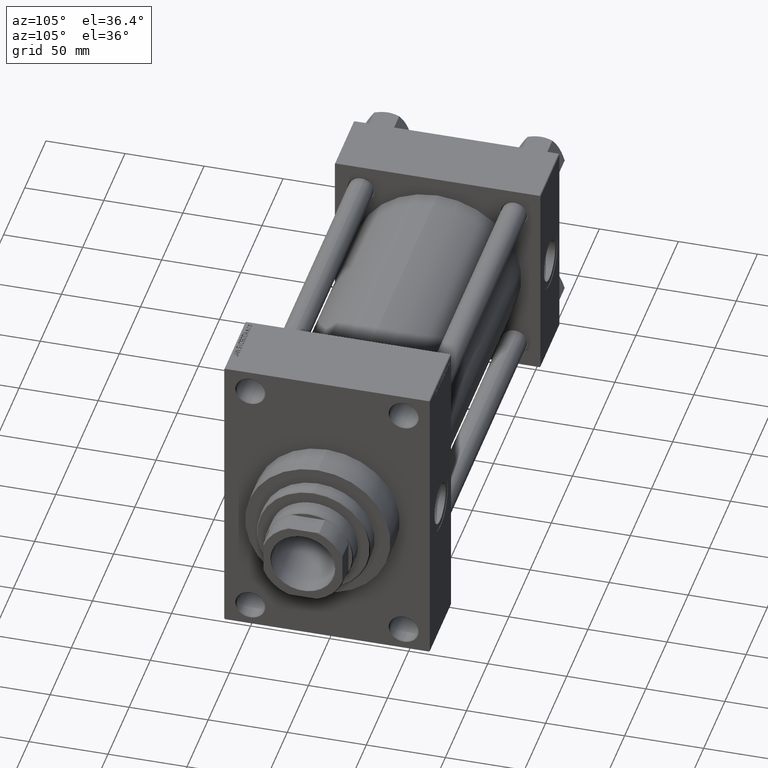
[diagram: clean part render]
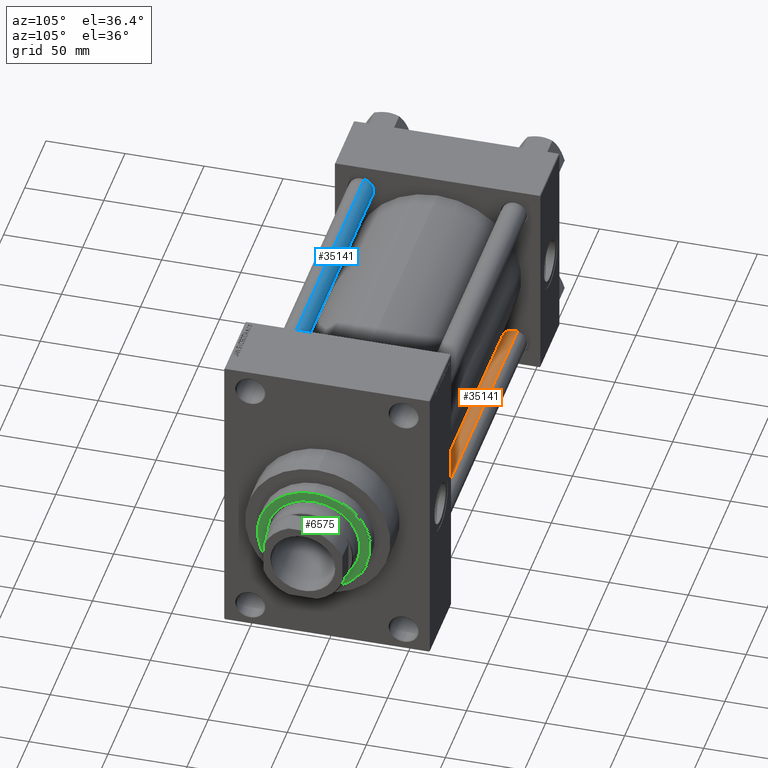
[diagram: same view with three faces highlighted in distinct colors, each labeled with its STEP entity id]
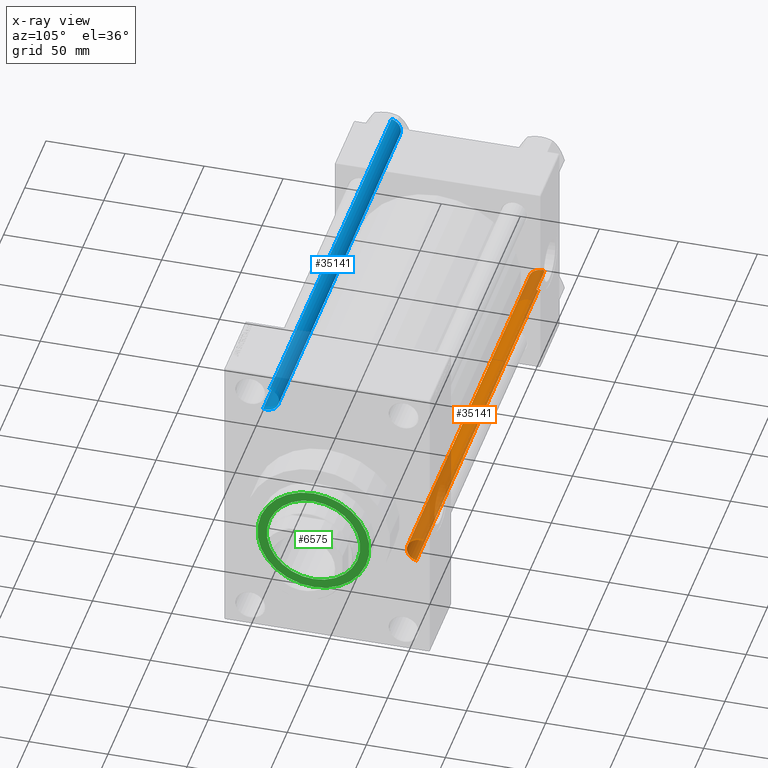
[diagram: x-ray of the same camera — body ghosted, the three highlighted faces saturated]
A machine part, auxiliary view with three faces highlighted in distinct colors.
The next image is the same camera in x-ray (body ghosted, the three faces saturated) — at least one of them is partly hidden behind the body in this view.
Their STEP definitions:

[orange] entity #35141 — the highlighted cylindrical surface (edge-blend (fillet) strip) has radius 8 mm, axis along (1, -0, 0).
#2326 = CARTESIAN_POINT ( 'NONE',  ( -8.000000000000000000, 0.000000000000000000, 289.0000000000000000 ) ) ;
#5060 = FACE_OUTER_BOUND ( 'NONE', #15351, .T. ) ;
#5304 = CYLINDRICAL_SURFACE ( 'NONE', #41360, 8.000000000000000000 ) ;
#8291 = VERTEX_POINT ( 'NONE', #25062 ) ;
#10431 = VERTEX_POINT ( 'NONE', #44399 ) ;
#15351 = EDGE_LOOP ( 'NONE', ( #21413, #37811, #22789, #37921 ) ) ;
#15922 = CIRCLE ( 'NONE', #34844, 8.000000000000000000 ) ;
#16666 = CARTESIAN_POINT ( 'NONE',  ( 0.000000000000000000, 0.000000000000000000, 289.0000000000000000 ) ) ;
#18906 = CIRCLE ( 'NONE', #25210, 8.000000000000000000 ) ;
#19583 = DIRECTION ( 'NONE',  ( -0.000000000000000000, -0.000000000000000000, -1.000000000000000000 ) ) ;
#19764 = EDGE_CURVE ( 'NONE', #37054, #36931, #18906, .T. ) ;
#20620 = DIRECTION ( 'NONE',  ( -1.000000000000000000, 0.000000000000000000, 0.000000000000000000 ) ) ;
#21413 = ORIENTED_EDGE ( 'NONE', *, *, #38571, .F. ) ;
#22051 = DIRECTION ( 'NONE',  ( -0.000000000000000000, -0.000000000000000000, -1.000000000000000000 ) ) ;
#22789 = ORIENTED_EDGE ( 'NONE', *, *, #24087, .T. ) ;
#24087 = EDGE_CURVE ( 'NONE', #10431, #37054, #39356, .T. ) ;
#25062 = CARTESIAN_POINT ( 'NONE',  ( 8.000000000000000000, 9.797174393178825657E-16, 288.5000000000000000 ) ) ;
#25210 = AXIS2_PLACEMENT_3D ( 'NONE', #35711, #46298, #42607 ) ;
#26658 = DIRECTION ( 'NONE',  ( 0.000000000000000000, 0.000000000000000000, -1.000000000000000000 ) ) ;
#27221 = CARTESIAN_POINT ( 'NONE',  ( 8.000000000000000000, 9.797174393178825657E-16, 289.0000000000000000 ) ) ;
#27388 = CARTESIAN_POINT ( 'NONE',  ( 0.000000000000000000, 0.000000000000000000, 288.5000000000000000 ) ) ;
#27993 = EDGE_CURVE ( 'NONE', #8291, #10431, #15922, .T. ) ;
#30081 = VECTOR ( 'NONE', #22051, 1000.000000000000000 ) ;
#32598 = LINE ( 'NONE', #27221, #41355 ) ;
#32886 = CARTESIAN_POINT ( 'NONE',  ( -8.000000000000000000, 0.000000000000000000, 0.5000000000000004441 ) ) ;
#34844 = AXIS2_PLACEMENT_3D ( 'NONE', #27388, #26658, #42439 ) ;
#35141 = ADVANCED_FACE ( 'NONE', ( #5060 ), #5304, .T. ) ;
#35711 = CARTESIAN_POINT ( 'NONE',  ( 0.000000000000000000, 0.000000000000000000, 0.5000000000000004441 ) ) ;
#36931 = VERTEX_POINT ( 'NONE', #41810 ) ;
#37054 = VERTEX_POINT ( 'NONE', #32886 ) ;
#37811 = ORIENTED_EDGE ( 'NONE', *, *, #27993, .T. ) ;
#37921 = ORIENTED_EDGE ( 'NONE', *, *, #19764, .T. ) ;
#38571 = EDGE_CURVE ( 'NONE', #8291, #36931, #32598, .T. ) ;
#39356 = LINE ( 'NONE', #2326, #30081 ) ;
#39374 = DIRECTION ( 'NONE',  ( -0.000000000000000000, -0.000000000000000000, -1.000000000000000000 ) ) ;
#41355 = VECTOR ( 'NONE', #19583, 1000.000000000000000 ) ;
#41360 = AXIS2_PLACEMENT_3D ( 'NONE', #16666, #39374, #20620 ) ;
#41810 = CARTESIAN_POINT ( 'NONE',  ( 8.000000000000000000, 9.797174393178825657E-16, 0.5000000000000004441 ) ) ;
#42439 = DIRECTION ( 'NONE',  ( 1.000000000000000000, 0.000000000000000000, 0.000000000000000000 ) ) ;
#42607 = DIRECTION ( 'NONE',  ( 1.000000000000000000, 0.000000000000000000, 0.000000000000000000 ) ) ;
#44399 = CARTESIAN_POINT ( 'NONE',  ( -8.000000000000000000, 0.000000000000000000, 288.5000000000000000 ) ) ;
#46298 = DIRECTION ( 'NONE',  ( -0.000000000000000000, -0.000000000000000000, 1.000000000000000000 ) ) ;

[blue] entity #35141 — the highlighted cylindrical surface (edge-blend (fillet) strip) has radius 8 mm, axis along (1, 0, 0).
#2326 = CARTESIAN_POINT ( 'NONE',  ( -8.000000000000000000, 0.000000000000000000, 289.0000000000000000 ) ) ;
#5060 = FACE_OUTER_BOUND ( 'NONE', #15351, .T. ) ;
#5304 = CYLINDRICAL_SURFACE ( 'NONE', #41360, 8.000000000000000000 ) ;
#8291 = VERTEX_POINT ( 'NONE', #25062 ) ;
#10431 = VERTEX_POINT ( 'NONE', #44399 ) ;
#15351 = EDGE_LOOP ( 'NONE', ( #21413, #37811, #22789, #37921 ) ) ;
#15922 = CIRCLE ( 'NONE', #34844, 8.000000000000000000 ) ;
#16666 = CARTESIAN_POINT ( 'NONE',  ( 0.000000000000000000, 0.000000000000000000, 289.0000000000000000 ) ) ;
#18906 = CIRCLE ( 'NONE', #25210, 8.000000000000000000 ) ;
#19583 = DIRECTION ( 'NONE',  ( -0.000000000000000000, -0.000000000000000000, -1.000000000000000000 ) ) ;
#19764 = EDGE_CURVE ( 'NONE', #37054, #36931, #18906, .T. ) ;
#20620 = DIRECTION ( 'NONE',  ( -1.000000000000000000, 0.000000000000000000, 0.000000000000000000 ) ) ;
#21413 = ORIENTED_EDGE ( 'NONE', *, *, #38571, .F. ) ;
#22051 = DIRECTION ( 'NONE',  ( -0.000000000000000000, -0.000000000000000000, -1.000000000000000000 ) ) ;
#22789 = ORIENTED_EDGE ( 'NONE', *, *, #24087, .T. ) ;
#24087 = EDGE_CURVE ( 'NONE', #10431, #37054, #39356, .T. ) ;
#25062 = CARTESIAN_POINT ( 'NONE',  ( 8.000000000000000000, 9.797174393178825657E-16, 288.5000000000000000 ) ) ;
#25210 = AXIS2_PLACEMENT_3D ( 'NONE', #35711, #46298, #42607 ) ;
#26658 = DIRECTION ( 'NONE',  ( 0.000000000000000000, 0.000000000000000000, -1.000000000000000000 ) ) ;
#27221 = CARTESIAN_POINT ( 'NONE',  ( 8.000000000000000000, 9.797174393178825657E-16, 289.0000000000000000 ) ) ;
#27388 = CARTESIAN_POINT ( 'NONE',  ( 0.000000000000000000, 0.000000000000000000, 288.5000000000000000 ) ) ;
#27993 = EDGE_CURVE ( 'NONE', #8291, #10431, #15922, .T. ) ;
#30081 = VECTOR ( 'NONE', #22051, 1000.000000000000000 ) ;
#32598 = LINE ( 'NONE', #27221, #41355 ) ;
#32886 = CARTESIAN_POINT ( 'NONE',  ( -8.000000000000000000, 0.000000000000000000, 0.5000000000000004441 ) ) ;
#34844 = AXIS2_PLACEMENT_3D ( 'NONE', #27388, #26658, #42439 ) ;
#35141 = ADVANCED_FACE ( 'NONE', ( #5060 ), #5304, .T. ) ;
#35711 = CARTESIAN_POINT ( 'NONE',  ( 0.000000000000000000, 0.000000000000000000, 0.5000000000000004441 ) ) ;
#36931 = VERTEX_POINT ( 'NONE', #41810 ) ;
#37054 = VERTEX_POINT ( 'NONE', #32886 ) ;
#37811 = ORIENTED_EDGE ( 'NONE', *, *, #27993, .T. ) ;
#37921 = ORIENTED_EDGE ( 'NONE', *, *, #19764, .T. ) ;
#38571 = EDGE_CURVE ( 'NONE', #8291, #36931, #32598, .T. ) ;
#39356 = LINE ( 'NONE', #2326, #30081 ) ;
#39374 = DIRECTION ( 'NONE',  ( -0.000000000000000000, -0.000000000000000000, -1.000000000000000000 ) ) ;
#41355 = VECTOR ( 'NONE', #19583, 1000.000000000000000 ) ;
#41360 = AXIS2_PLACEMENT_3D ( 'NONE', #16666, #39374, #20620 ) ;
#41810 = CARTESIAN_POINT ( 'NONE',  ( 8.000000000000000000, 9.797174393178825657E-16, 0.5000000000000004441 ) ) ;
#42439 = DIRECTION ( 'NONE',  ( 1.000000000000000000, 0.000000000000000000, 0.000000000000000000 ) ) ;
#42607 = DIRECTION ( 'NONE',  ( 1.000000000000000000, 0.000000000000000000, 0.000000000000000000 ) ) ;
#44399 = CARTESIAN_POINT ( 'NONE',  ( -8.000000000000000000, 0.000000000000000000, 288.5000000000000000 ) ) ;
#46298 = DIRECTION ( 'NONE',  ( -0.000000000000000000, -0.000000000000000000, 1.000000000000000000 ) ) ;

[green] entity #6575 — the highlighted planar face has unit normal (1, -0, -0).
#698 = EDGE_CURVE ( 'NONE', #24756, #45555, #43743, .T. ) ;
#835 = ORIENTED_EDGE ( 'NONE', *, *, #3553, .T. ) ;
#3553 = EDGE_CURVE ( 'NONE', #33330, #40991, #44610, .T. ) ;
#4985 = DIRECTION ( 'NONE',  ( 0.000000000000000000, 0.000000000000000000, 1.000000000000000000 ) ) ;
#5816 = CIRCLE ( 'NONE', #27875, 29.50000000000000355 ) ;
#6111 = AXIS2_PLACEMENT_3D ( 'NONE', #45806, #26804, #38408 ) ;
#6569 = DIRECTION ( 'NONE',  ( 0.000000000000000000, 0.000000000000000000, 1.000000000000000000 ) ) ;
#6575 = ADVANCED_FACE ( 'NONE', ( #31018, #42343 ), #38894, .T. ) ;
#9387 = CARTESIAN_POINT ( 'NONE',  ( 29.50000000000000355, 0.000000000000000000, 53.26000000000000512 ) ) ;
#10185 = DIRECTION ( 'NONE',  ( 0.000000000000000000, 0.000000000000000000, 1.000000000000000000 ) ) ;
#11301 = ORIENTED_EDGE ( 'NONE', *, *, #32523, .F. ) ;
#14149 = EDGE_LOOP ( 'NONE', ( #835, #35083 ) ) ;
#16260 = AXIS2_PLACEMENT_3D ( 'NONE', #37419, #6569, #17695 ) ;
#17695 = DIRECTION ( 'NONE',  ( 1.000000000000000000, 0.000000000000000000, 0.000000000000000000 ) ) ;
#20532 = CARTESIAN_POINT ( 'NONE',  ( 0.000000000000000000, 0.000000000000000000, 53.26000000000000512 ) ) ;
#20776 = DIRECTION ( 'NONE',  ( 1.000000000000000000, 0.000000000000000000, 0.000000000000000000 ) ) ;
#24183 = ORIENTED_EDGE ( 'NONE', *, *, #698, .F. ) ;
#24266 = EDGE_CURVE ( 'NONE', #40991, #33330, #37196, .T. ) ;
#24756 = VERTEX_POINT ( 'NONE', #43170 ) ;
#26804 = DIRECTION ( 'NONE',  ( 0.000000000000000000, 0.000000000000000000, 1.000000000000000000 ) ) ;
#26931 = AXIS2_PLACEMENT_3D ( 'NONE', #38819, #4985, #27692 ) ;
#27692 = DIRECTION ( 'NONE',  ( 1.000000000000000000, 0.000000000000000000, 0.000000000000000000 ) ) ;
#27875 = AXIS2_PLACEMENT_3D ( 'NONE', #36123, #10185, #45379 ) ;
#28746 = AXIS2_PLACEMENT_3D ( 'NONE', #20532, #47167, #20776 ) ;
#31018 = FACE_BOUND ( 'NONE', #44369, .T. ) ;
#32523 = EDGE_CURVE ( 'NONE', #45555, #24756, #5816, .T. ) ;
#33330 = VERTEX_POINT ( 'NONE', #40782 ) ;
#35083 = ORIENTED_EDGE ( 'NONE', *, *, #24266, .T. ) ;
#36123 = CARTESIAN_POINT ( 'NONE',  ( 0.000000000000000000, 0.000000000000000000, 53.26000000000000512 ) ) ;
#37196 = CIRCLE ( 'NONE', #26931, 35.50000000000001421 ) ;
#37419 = CARTESIAN_POINT ( 'NONE',  ( 0.000000000000000000, 0.000000000000000000, 53.26000000000000512 ) ) ;
#38408 = DIRECTION ( 'NONE',  ( 1.000000000000000000, 0.000000000000000000, -0.000000000000000000 ) ) ;
#38819 = CARTESIAN_POINT ( 'NONE',  ( 0.000000000000000000, 0.000000000000000000, 53.26000000000000512 ) ) ;
#38894 = PLANE ( 'NONE',  #6111 ) ;
#40782 = CARTESIAN_POINT ( 'NONE',  ( -35.50000000000001421, 0.000000000000000000, 53.26000000000000512 ) ) ;
#40991 = VERTEX_POINT ( 'NONE', #43222 ) ;
#42343 = FACE_OUTER_BOUND ( 'NONE', #14149, .T. ) ;
#43170 = CARTESIAN_POINT ( 'NONE',  ( -29.50000000000000355, 3.612708057484692393E-15, 53.26000000000000512 ) ) ;
#43222 = CARTESIAN_POINT ( 'NONE',  ( 35.50000000000001421, 4.378112306951788646E-15, 53.26000000000000512 ) ) ;
#43743 = CIRCLE ( 'NONE', #28746, 29.50000000000000355 ) ;
#44369 = EDGE_LOOP ( 'NONE', ( #11301, #24183 ) ) ;
#44610 = CIRCLE ( 'NONE', #16260, 35.50000000000001421 ) ;
#45379 = DIRECTION ( 'NONE',  ( 1.000000000000000000, 0.000000000000000000, 0.000000000000000000 ) ) ;
#45555 = VERTEX_POINT ( 'NONE', #9387 ) ;
#45806 = CARTESIAN_POINT ( 'NONE',  ( 0.000000000000000000, 0.000000000000000000, 53.26000000000000512 ) ) ;
#47167 = DIRECTION ( 'NONE',  ( 0.000000000000000000, 0.000000000000000000, 1.000000000000000000 ) ) ;